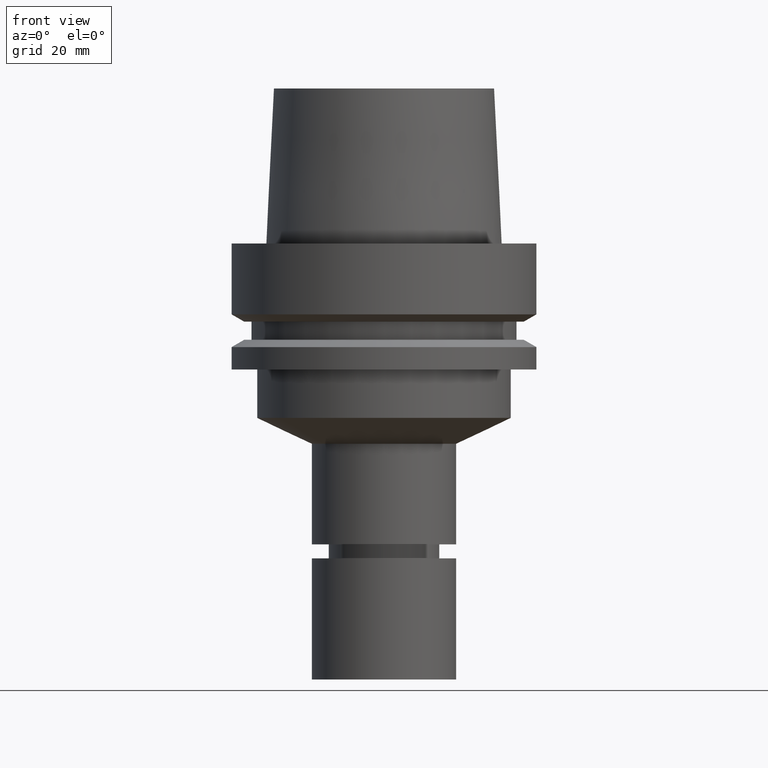
[diagram: clean part render]
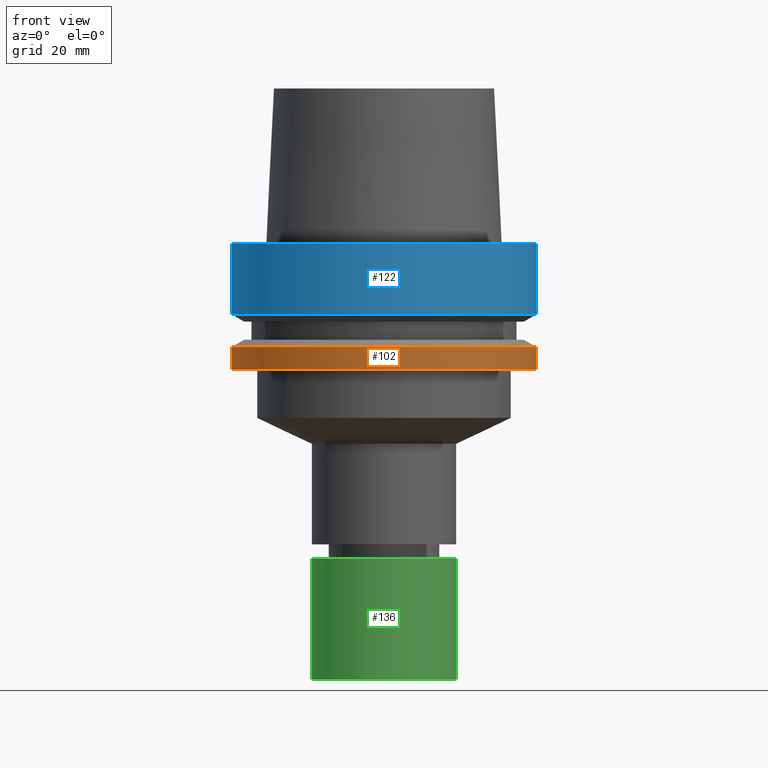
[diagram: same view with three faces highlighted in distinct colors, each labeled with its STEP entity id]
A machine part, front view with three faces highlighted in distinct colors.
Their STEP definitions:

[orange] entity #102 — the highlighted cylindrical surface (bore or boss wall) has radius 31.5 mm, axis along (-0, -0, 1).
#102=ADVANCED_FACE('Unnamed[1]',(#248,#249),#250,.T.);
#143=EDGE_CURVE('Unnamed[1]',#312,#312,#313,.T.);
#162=EDGE_CURVE('Unnamed[1]',#342,#342,#343,.T.);
#248=FACE_BOUND('',#448,.T.);
#249=FACE_BOUND('',#449,.T.);
#250=CYLINDRICAL_SURFACE('',#450,31.4999999999999);
#312=VERTEX_POINT('',#527);
#313=CIRCLE('',#528,31.4999999999998);
#342=VERTEX_POINT('',#565);
#343=CIRCLE('',#566,31.5);
#448=EDGE_LOOP('',(#664));
#449=EDGE_LOOP('',(#665));
#450=AXIS2_PLACEMENT_3D('',#666,#667,#668);
#527=CARTESIAN_POINT('',(1.59204083889155E-015,31.4999999999998,-25.9999999999999));
#528=AXIS2_PLACEMENT_3D('',#735,#736,#737);
#565=CARTESIAN_POINT('',(1.30899429078397E-015,31.5,-21.3774990747592));
#566=AXIS2_PLACEMENT_3D('',#768,#769,#770);
#664=ORIENTED_EDGE('',*,*,#162,.F.);
#665=ORIENTED_EDGE('',*,*,#143,.T.);
#666=CARTESIAN_POINT('',(1.45051756483776E-015,2.90103512967552E-015,-23.6887495373796));
#667=DIRECTION('',(-6.12323399573677E-017,-1.22464679914735E-016,1.0));
#668=DIRECTION('',(-1.23259516440783E-032,1.0,1.22464679914735E-016));
#735=CARTESIAN_POINT('',(1.59204083889155E-015,3.1840816777831E-015,-25.9999999999999));
#736=DIRECTION('',(-6.12323399573676E-017,-1.22464679914735E-016,1.0));
#737=DIRECTION('',(-1.23259516440783E-032,1.0,1.22464679914735E-016));
#768=CARTESIAN_POINT('',(1.30899429078397E-015,2.61798858156794E-015,-21.3774990747592));
#769=DIRECTION('',(-6.12323399573677E-017,-1.22464679914735E-016,1.0));
#770=DIRECTION('',(-1.23259516440783E-032,1.0,1.22464679914735E-016));

[blue] entity #122 — the highlighted cylindrical surface (bore or boss wall) has radius 31.5 mm, axis along (-0, -0, 1).
#94=EDGE_CURVE('Unnamed[1]',#238,#238,#239,.T.);
#122=ADVANCED_FACE('Unnamed[1]',(#280,#281),#282,.T.);
#148=EDGE_CURVE('Unnamed[1]',#320,#320,#321,.T.);
#238=VERTEX_POINT('',#436);
#239=CIRCLE('',#437,31.5000000000001);
#280=FACE_BOUND('',#488,.T.);
#281=FACE_BOUND('',#489,.T.);
#282=CYLINDRICAL_SURFACE('',#490,31.5);
#320=VERTEX_POINT('',#537);
#321=CIRCLE('',#538,31.5);
#436=CARTESIAN_POINT('',(-3.88267476788467E-031,31.5000000000001,3.85763741731417E-015));
#437=AXIS2_PLACEMENT_3D('',#656,#657,#658);
#488=EDGE_LOOP('',(#700));
#489=EDGE_LOOP('',(#701));
#490=AXIS2_PLACEMENT_3D('',#702,#703,#704);
#537=CARTESIAN_POINT('',(8.95369947681261E-016,31.5,-14.6225009252407));
#538=AXIS2_PLACEMENT_3D('',#744,#745,#746);
#656=CARTESIAN_POINT('',(0.0,0.0,0.0));
#657=DIRECTION('',(-6.12323399573677E-017,-1.22464679914735E-016,1.0));
#658=DIRECTION('',(-1.23259516440783E-032,1.0,1.22464679914735E-016));
#700=ORIENTED_EDGE('',*,*,#94,.F.);
#701=ORIENTED_EDGE('',*,*,#148,.T.);
#702=CARTESIAN_POINT('',(4.47684973840631E-016,8.95369947681262E-016,-7.31125046262035));
#703=DIRECTION('',(-6.12323399573677E-017,-1.22464679914735E-016,1.0));
#704=DIRECTION('',(-1.23259516440783E-032,1.0,1.22464679914735E-016));
#744=CARTESIAN_POINT('',(8.95369947681262E-016,1.79073989536252E-015,-14.6225009252407));
#745=DIRECTION('',(-6.12323399573677E-017,-1.22464679914735E-016,1.0));
#746=DIRECTION('',(-1.23259516440783E-032,1.0,1.22464679914735E-016));

[green] entity #136 — the highlighted cylindrical surface (bore or boss wall) has radius 15 mm, axis along (0, 0, -1).
#109=EDGE_CURVE('Unnamed[1]',#260,#260,#261,.T.);
#133=EDGE_CURVE('Unnamed[1]',#296,#296,#297,.T.);
#136=ADVANCED_FACE('Unnamed[1]',(#300,#301),#302,.T.);
#260=VERTEX_POINT('',#463);
#261=CIRCLE('',#464,15.0);
#296=VERTEX_POINT('',#507);
#297=CIRCLE('',#508,15.0000000000001);
#300=FACE_BOUND('',#512,.T.);
#301=FACE_BOUND('',#513,.T.);
#302=CYLINDRICAL_SURFACE('',#514,15.0);
#463=CARTESIAN_POINT('',(5.51091059616309E-015,15.0,-90.0));
#464=AXIS2_PLACEMENT_3D('',#678,#679,#680);
#507=CARTESIAN_POINT('',(3.9801020972289E-015,15.0000000000001,-65.0));
#508=AXIS2_PLACEMENT_3D('',#717,#718,#719);
#512=EDGE_LOOP('',(#721));
#513=EDGE_LOOP('',(#722));
#514=AXIS2_PLACEMENT_3D('',#723,#724,#725);
#678=CARTESIAN_POINT('',(5.51091059616309E-015,1.10218211923262E-014,-90.0));
#679=DIRECTION('',(6.12323399573677E-017,1.22464679914735E-016,-1.0));
#680=DIRECTION('',(-1.23259516440783E-032,1.0,1.22464679914735E-016));
#717=CARTESIAN_POINT('',(3.9801020972289E-015,7.9602041944578E-015,-65.0));
#718=DIRECTION('',(6.12323399573677E-017,1.22464679914735E-016,-1.0));
#719=DIRECTION('',(-1.23259516440783E-032,1.0,1.22464679914735E-016));
#721=ORIENTED_EDGE('',*,*,#109,.F.);
#722=ORIENTED_EDGE('',*,*,#133,.T.);
#723=CARTESIAN_POINT('',(4.745506346696E-015,9.49101269339199E-015,-77.5));
#724=DIRECTION('',(6.12323399573677E-017,1.22464679914735E-016,-1.0));
#725=DIRECTION('',(-1.23259516440783E-032,1.0,1.22464679914735E-016));